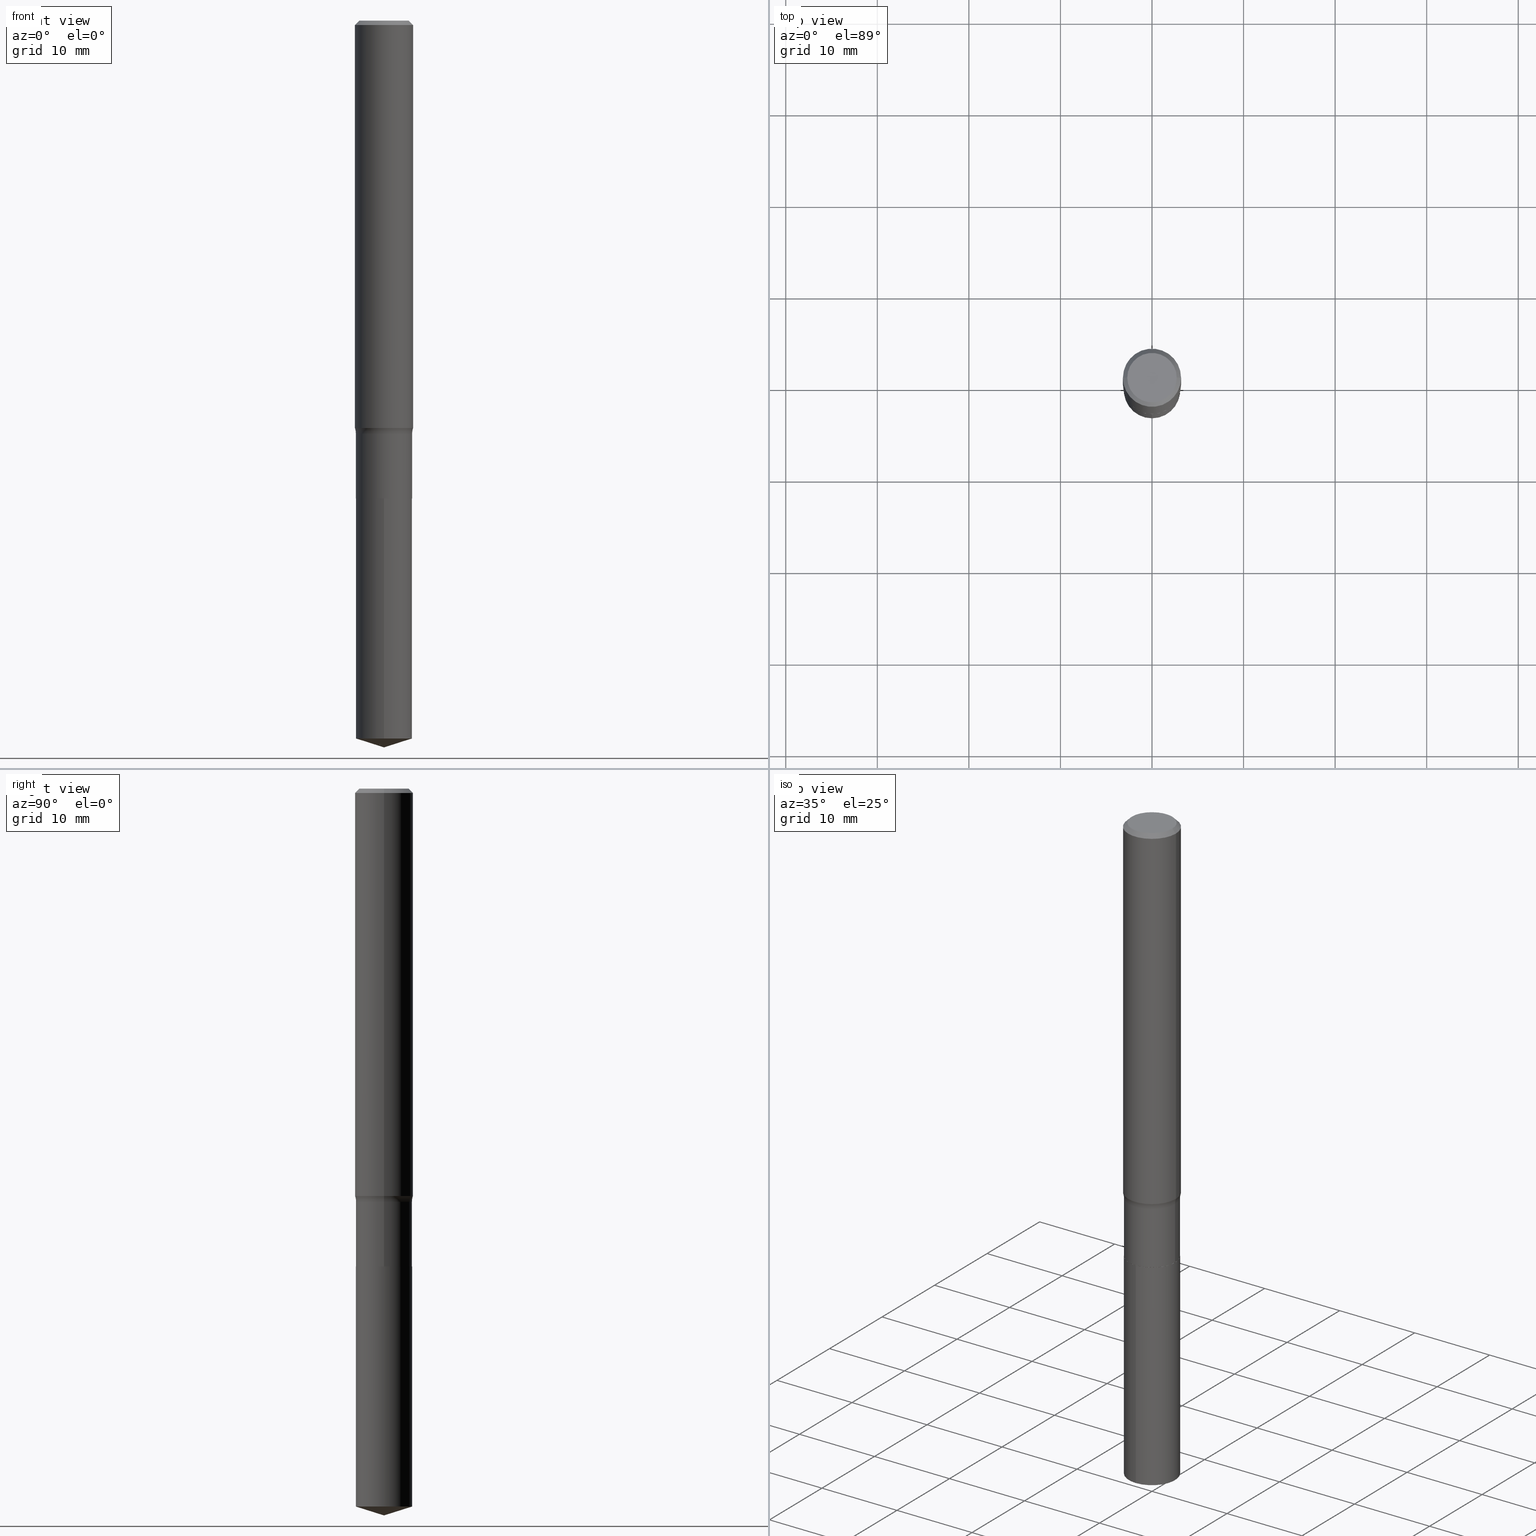
[diagram: canonical four-view strip — front | top / right | iso, engineering-drawing reading convention]
A machine part, canonical four-view strip (front | top / right | iso — engineering-drawing reading convention). The complete STEP part file that produces these views, byte-faithful:
ISO-10303-21;
HEADER;
FILE_DESCRIPTION (( 'STEP AP203' ),
    '1' );
FILE_NAME ('51603.STEP',
    '2024-04-19T13:07:35',
    ( '' ),
    ( '' ),
    'SwSTEP 2.0',
    'SolidWorks 2023',
    '' );
FILE_SCHEMA (( 'CONFIG_CONTROL_DESIGN' ));
ENDSEC;

DATA;
#1 = CARTESIAN_POINT ( 'NONE',  ( -0.1250000000000002498, -5.227298988527986876E-15, -1.751542343988123251 ) ) ;
#2 = COORDINATED_UNIVERSAL_TIME_OFFSET ( 5, 0, .BEHIND. ) ;
#3 = EDGE_LOOP ( 'NONE', ( #31, #164, #324, #198 ) ) ;
#4 = EDGE_CURVE ( 'NONE', #166, #441, #353, .T. ) ;
#5 = PERSON_AND_ORGANIZATION ( #330, #167 ) ;
#6 = DIRECTION ( 'NONE',  ( -1.000000000000000000, 7.105427357600997914E-15, 0.000000000000000000 ) ) ;
#7 = CIRCLE ( 'NONE', #28, 0.1210000000000000103 ) ;
#8 = DIRECTION ( 'NONE',  ( 1.000000000000000000, -6.982962677686267499E-15, 4.883557194083113462E-29 ) ) ;
#9 = DIRECTION ( 'NONE',  ( 1.000000000000000000, -6.982962677686265922E-15, 0.000000000000000000 ) ) ;
#10 = DIRECTION ( 'NONE',  ( 0.000000000000000000, 0.000000000000000000, 1.000000000000000000 ) ) ;
#11 = CARTESIAN_POINT ( 'NONE',  ( 4.585254011597165626E-31, -6.546527510330947764E-17, -0.01875000000000014155 ) ) ;
#12 = ORIENTED_EDGE ( 'NONE', *, *, #425, .F. ) ;
#13 = EDGE_CURVE ( 'NONE', #128, #280, #184, .T. ) ;
#14 = CARTESIAN_POINT ( 'NONE',  ( 0.1250000000000000278, -9.230275248247511818E-16, -0.01875000000000014155 ) ) ;
#15 = AXIS2_PLACEMENT_3D ( 'NONE', #112, #410, #76 ) ;
#16 = CC_DESIGN_APPROVAL ( #284, ( #156 ) ) ;
#17 = DIRECTION ( 'NONE',  ( -2.438088387897960049E-29, 3.491481338843145188E-15, 1.000000000000000000 ) ) ;
#18 = ADVANCED_FACE ( 'NONE', ( #490 ), #461, .F. ) ;
#19 = LOCAL_TIME ( 9, 7, 35.00000000000000000, #176 ) ;
#20 = ORIENTED_EDGE ( 'NONE', *, *, #51, .T. ) ;
#21 = EDGE_CURVE ( 'NONE', #322, #388, #38, .T. ) ;
#22 = DIRECTION ( 'NONE',  ( -2.445399369291198092E-29, 3.491580776427368164E-15, 1.000000000000000000 ) ) ;
#23 = VERTEX_POINT ( 'NONE', #174 ) ;
#24 = EDGE_CURVE ( 'NONE', #280, #200, #334, .T. ) ;
#25 = FACE_OUTER_BOUND ( 'NONE', #430, .T. ) ;
#26 = EDGE_LOOP ( 'NONE', ( #153, #244 ) ) ;
#27 = AXIS2_PLACEMENT_3D ( 'NONE', #88, #43, #453 ) ;
#28 = AXIS2_PLACEMENT_3D ( 'NONE', #104, #403, #216 ) ;
#29 = LINE ( 'NONE', #291, #366 ) ;
#30 = DIRECTION ( 'NONE',  ( -6.982962677686264344E-15, -1.000000000000000000, 4.515451229197129137E-15 ) ) ;
#31 = ORIENTED_EDGE ( 'NONE', *, *, #451, .T. ) ;
#32 = DIRECTION ( 'NONE',  ( -2.445468806185136597E-29, 3.491481338843145583E-15, 1.000000000000000000 ) ) ;
#33 = DIRECTION ( 'NONE',  ( 2.445468806185136597E-29, -3.491481338843145583E-15, -1.000000000000000000 ) ) ;
#34 = AXIS2_PLACEMENT_3D ( 'NONE', #258, #228, #140 ) ;
#35 = VECTOR ( 'NONE', #199, 39.37007874015748143 ) ;
#36 = DIRECTION ( 'NONE',  ( 1.000000000000000000, -6.982962677686265133E-15, 0.000000000000000000 ) ) ;
#37 = CYLINDRICAL_SURFACE ( 'NONE', #212, 0.1210000000000000103 ) ;
#38 = CIRCLE ( 'NONE', #96, 0.1209999999999999687 ) ;
#39 = CIRCLE ( 'NONE', #448, 0.1250000000000000278 ) ;
#40 = CARTESIAN_POINT ( 'NONE',  ( 0.1209999999999999826, -8.449384840000380984E-16, 5.900173898713081917E-30 ) ) ;
#41 = SECURITY_CLASSIFICATION_LEVEL ( 'unclassified' ) ;
#42 = ORIENTED_EDGE ( 'NONE', *, *, #93, .F. ) ;
#43 = DIRECTION ( 'NONE',  ( -2.445468806185136597E-29, 3.491481338843145583E-15, 1.000000000000000000 ) ) ;
#44 = ORIENTED_EDGE ( 'NONE', *, *, #179, .T. ) ;
#45 = CARTESIAN_POINT ( 'NONE',  ( 6.364025535057318316E-46, -9.086141822531067035E-32, -2.602374448188125350E-17 ) ) ;
#46 = EDGE_LOOP ( 'NONE', ( #206, #12 ) ) ;
#47 = DIRECTION ( 'NONE',  ( -6.982962677686265922E-15, -1.000000000000000000, 3.500519750498747030E-15 ) ) ;
#48 = AXIS2_PLACEMENT_3D ( 'NONE', #64, #440, #219 ) ;
#49 = CONICAL_SURFACE ( 'NONE', #427, 0.1204999999999999960, 0.7853981633975678500 ) ;
#50 = ADVANCED_FACE ( 'NONE', ( #295 ), #298, .F. ) ;
#51 = EDGE_CURVE ( 'NONE', #23, #94, #187, .T. ) ;
#52 = ORIENTED_EDGE ( 'NONE', *, *, #404, .F. ) ;
#53 = VERTEX_POINT ( 'NONE', #1 ) ;
#54 = CC_DESIGN_PERSON_AND_ORGANIZATION_ASSIGNMENT ( #414, #233, ( #156 ) ) ;
#55 = DIRECTION ( 'NONE',  ( 1.000000000000000000, -6.982962677686267499E-15, 0.000000000000000000 ) ) ;
#56 = ORIENTED_EDGE ( 'NONE', *, *, #123, .F. ) ;
#57 = CARTESIAN_POINT ( 'NONE',  ( 5.024215662307363891E-29, -7.173248410653242943E-15, -2.054499999999999993 ) ) ;
#58 = ORIENTED_EDGE ( 'NONE', *, *, #466, .F. ) ;
#59 = FACE_OUTER_BOUND ( 'NONE', #3, .T. ) ;
#60 = DIRECTION ( 'NONE',  ( 1.000000000000000000, -6.982962677686265133E-15, 0.000000000000000000 ) ) ;
#61 = ORIENTED_EDGE ( 'NONE', *, *, #123, .T. ) ;
#62 = AXIS2_PLACEMENT_3D ( 'NONE', #367, #252, #36 ) ;
#63 =( GEOMETRIC_REPRESENTATION_CONTEXT ( 3 ) GLOBAL_UNCERTAINTY_ASSIGNED_CONTEXT ( ( #139 ) ) GLOBAL_UNIT_ASSIGNED_CONTEXT ( ( #443, #257, #147 ) ) REPRESENTATION_CONTEXT ( 'NONE', 'WORKASPACE' ) );
#64 = CARTESIAN_POINT ( 'NONE',  ( 0.000000000000000000, 0.000000000000000000, 0.000000000000000000 ) ) ;
#65 = DIRECTION ( 'NONE',  ( -2.445399369291198092E-29, 3.491580776427368164E-15, 1.000000000000000000 ) ) ;
#66 = ORIENTED_EDGE ( 'NONE', *, *, #472, .F. ) ;
#67 = FACE_OUTER_BOUND ( 'NONE', #315, .T. ) ;
#68 = CARTESIAN_POINT ( 'NONE',  ( 4.343641693546039959E-29, -6.201569154053194613E-15, -1.776200000000000001 ) ) ;
#69 = EDGE_CURVE ( 'NONE', #391, #227, #446, .T. ) ;
#70 = CARTESIAN_POINT ( 'NONE',  ( 0.1250000000000001110, -8.728703347107842263E-16, 6.095220969744926047E-30 ) ) ;
#71 = APPROVAL_DATE_TIME ( #152, #460 ) ;
#72 = EDGE_LOOP ( 'NONE', ( #169, #215, #426, #52 ) ) ;
#73 = CYLINDRICAL_SURFACE ( 'NONE', #327, 0.1250000000000001110 ) ;
#74 = CLOSED_SHELL ( 'NONE', ( #421, #202, #196, #135, #165 ) ) ;
#75 = VECTOR ( 'NONE', #373, 39.37007874015748143 ) ;
#76 = DIRECTION ( 'NONE',  ( 1.000000000000000000, -6.982962677686270655E-15, 0.000000000000000000 ) ) ;
#77 = DATE_AND_TIME ( #411, #235 ) ;
#78 = ORIENTED_EDGE ( 'NONE', *, *, #93, .T. ) ;
#79 = DIRECTION ( 'NONE',  ( -2.445468806185136597E-29, 3.491481338843145583E-15, 1.000000000000000000 ) ) ;
#80 = PERSON_AND_ORGANIZATION ( #330, #167 ) ;
#81 = ORIENTED_EDGE ( 'NONE', *, *, #238, .F. ) ;
#82 = FACE_OUTER_BOUND ( 'NONE', #46, .T. ) ;
#83 = CC_DESIGN_DATE_AND_TIME_ASSIGNMENT ( #168, #218, ( #277 ) ) ;
#84 = AXIS2_PLACEMENT_3D ( 'NONE', #317, #392, #397 ) ;
#85 = DIRECTION ( 'NONE',  ( 1.000000000000000000, -6.982962677686270655E-15, 0.000000000000000000 ) ) ;
#86 = CALENDAR_DATE ( 2024, 19, 4 ) ;
#87 = DIRECTION ( 'NONE',  ( 1.000000000000000000, -6.982962677686266711E-15, 4.877714189860772023E-29 ) ) ;
#88 = CARTESIAN_POINT ( 'NONE',  ( 0.000000000000000000, 0.000000000000000000, 0.000000000000000000 ) ) ;
#89 = VECTOR ( 'NONE', #115, 39.37007874015748143 ) ;
#90 = CIRCLE ( 'NONE', #355, 0.1062499999999999972 ) ;
#91 = ORIENTED_EDGE ( 'NONE', *, *, #425, .T. ) ;
#92 = ADVANCED_FACE ( 'NONE', ( #59 ), #286, .T. ) ;
#93 = EDGE_CURVE ( 'NONE', #388, #322, #309, .T. ) ;
#94 = VERTEX_POINT ( 'NONE', #102 ) ;
#95 = CARTESIAN_POINT ( 'NONE',  ( 7.548720880538574593E-29, -1.077777779781897648E-14, -3.086848846545643177 ) ) ;
#96 = AXIS2_PLACEMENT_3D ( 'NONE', #222, #331, #401 ) ;
#97 = ORIENTED_EDGE ( 'NONE', *, *, #472, .T. ) ;
#98 = DIRECTION ( 'NONE',  ( -2.445468806185136877E-29, 3.491481338843145188E-15, 1.000000000000000000 ) ) ;
#99 = VERTEX_POINT ( 'NONE', #213 ) ;
#100 = MANIFOLD_SOLID_BREP ( 'Body-Move/Copy2[2]', #119 ) ;
#101 = SHAPE_DEFINITION_REPRESENTATION ( #346, #236 ) ;
#102 = CARTESIAN_POINT ( 'NONE',  ( 8.597567102697963387E-16, 0.1209999999999891718, -3.086848846545643621 ) ) ;
#103 = CARTESIAN_POINT ( 'NONE',  ( 0.1204999999999999960, -8.014695413314437640E-15, -2.054499999999999993 ) ) ;
#104 = CARTESIAN_POINT ( 'NONE',  ( 7.548720880538574593E-29, -1.077777779781897648E-14, -3.086848846545643177 ) ) ;
#105 = CC_DESIGN_PERSON_AND_ORGANIZATION_ASSIGNMENT ( #5, #296, ( #270 ) ) ;
#106 = FACE_OUTER_BOUND ( 'NONE', #72, .T. ) ;
#107 = CIRCLE ( 'NONE', #319, 0.1062499999999999972 ) ;
#108 = ADVANCED_FACE ( 'NONE', ( #106 ), #271, .T. ) ;
#109 = ORIENTED_EDGE ( 'NONE', *, *, #387, .F. ) ;
#110 = CARTESIAN_POINT ( 'NONE',  ( 4.585254011597165626E-31, -6.546527510330947764E-17, -0.01875000000000014155 ) ) ;
#111 = ORIENTED_EDGE ( 'NONE', *, *, #399, .F. ) ;
#112 = CARTESIAN_POINT ( 'NONE',  ( 4.343641693546039959E-29, -6.201569154053194613E-15, -1.776200000000000001 ) ) ;
#113 = COORDINATED_UNIVERSAL_TIME_OFFSET ( 5, 0, .BEHIND. ) ;
#114 = CARTESIAN_POINT ( 'NONE',  ( 4.283342164935351862E-29, -6.115477408228114475E-15, -1.751542343988123251 ) ) ;
#115 = DIRECTION ( 'NONE',  ( -0.7071067811866320607, 7.493145998870660238E-15, 0.7071067811864629737 ) ) ;
#116 = DATE_AND_TIME ( #300, #161 ) ;
#117 = VERTEX_POINT ( 'NONE', #396 ) ;
#118 = CARTESIAN_POINT ( 'NONE',  ( 8.597567102697967331E-16, 0.1209999999999928355, -2.054500000000000881 ) ) ;
#119 = CLOSED_SHELL ( 'NONE', ( #108, #456, #354, #18, #92, #347, #125, #210, #370, #50, #211, #464 ) ) ;
#120 = CIRCLE ( 'NONE', #293, 0.1210000000000000103 ) ;
#121 = DIRECTION ( 'NONE',  ( -2.445399369291198092E-29, 3.491580776427368164E-15, 1.000000000000000000 ) ) ;
#122 = DIRECTION ( 'NONE',  ( -6.982962677686265922E-15, -1.000000000000000000, 3.500519750498747030E-15 ) ) ;
#123 = EDGE_CURVE ( 'NONE', #117, #185, #29, .T. ) ;
#124 = ORIENTED_EDGE ( 'NONE', *, *, #310, .F. ) ;
#125 = ADVANCED_FACE ( 'NONE', ( #361 ), #342, .F. ) ;
#126 = AXIS2_PLACEMENT_3D ( 'NONE', #326, #402, #279 ) ;
#127 = ORIENTED_EDGE ( 'NONE', *, *, #439, .F. ) ;
#128 = VERTEX_POINT ( 'NONE', #177 ) ;
#129 = ORIENTED_EDGE ( 'NONE', *, *, #248, .T. ) ;
#130 = AXIS2_PLACEMENT_3D ( 'NONE', #376, #378, #47 ) ;
#131 = DIRECTION ( 'NONE',  ( 0.7071067811866320607, -2.468850131083142557E-15, 0.7071067811864629737 ) ) ;
#132 = CIRCLE ( 'NONE', #243, 0.1250000000000000278 ) ;
#133 = ORIENTED_EDGE ( 'NONE', *, *, #13, .F. ) ;
#134 = CARTESIAN_POINT ( 'NONE',  ( 5.024215662307363891E-29, -7.173248410653242943E-15, -2.054499999999999993 ) ) ;
#135 = ADVANCED_FACE ( 'NONE', ( #337 ), #37, .T. ) ;
#136 = ORIENTED_EDGE ( 'NONE', *, *, #278, .T. ) ;
#137 = DIRECTION ( 'NONE',  ( -2.445399369291198092E-29, 3.491580776427368164E-15, 1.000000000000000000 ) ) ;
#138 = CARTESIAN_POINT ( 'NONE',  ( 5.024215662307363891E-29, -7.173248410653242943E-15, -2.054499999999999993 ) ) ;
#139 = UNCERTAINTY_MEASURE_WITH_UNIT (LENGTH_MEASURE( 1.000000000000000082E-05 ), #443, 'distance_accuracy_value', 'NONE');
#140 = DIRECTION ( 'NONE',  ( -1.000000000000000000, 6.982962677686265922E-15, -4.876176775795935793E-29 ) ) ;
#141 = DIRECTION ( 'NONE',  ( -2.445399369291198092E-29, 3.491580776427368164E-15, 1.000000000000000000 ) ) ;
#142 = AXIS2_PLACEMENT_3D ( 'NONE', #68, #325, #479 ) ;
#143 = DIRECTION ( 'NONE',  ( -2.445468806185136597E-29, 3.491481338843145583E-15, 1.000000000000000000 ) ) ;
#144 = APPROVAL_PERSON_ORGANIZATION ( #458, #284, #379 ) ;
#145 = APPROVAL ( #360, 'UNSPECIFIED' ) ;
#146 = CARTESIAN_POINT ( 'NONE',  ( 5.024215662307363891E-29, -7.173248410653242943E-15, -2.054499999999999993 ) ) ;
#147 =( NAMED_UNIT ( * ) SI_UNIT ( $, .STERADIAN. ) SOLID_ANGLE_UNIT ( ) );
#148 = EDGE_LOOP ( 'NONE', ( #375, #242, #61, #171 ) ) ;
#149 = DIRECTION ( 'NONE',  ( 1.000000000000000000, -6.982962677686265922E-15, 0.000000000000000000 ) ) ;
#150 = DIRECTION ( 'NONE',  ( -2.445399369291197811E-29, 3.491580776427368164E-15, 1.000000000000000000 ) ) ;
#151 = CARTESIAN_POINT ( 'NONE',  ( 0.1250000000000002498, -6.988347742938897814E-15, -1.751542343988123251 ) ) ;
#152 = DATE_AND_TIME ( #86, #418 ) ;
#153 = ORIENTED_EDGE ( 'NONE', *, *, #24, .T. ) ;
#154 = CC_DESIGN_DATE_AND_TIME_ASSIGNMENT ( #116, #368, ( #452 ) ) ;
#155 = CIRCLE ( 'NONE', #314, 0.1204999999999999960 ) ;
#156 = PRODUCT_DEFINITION_FORMATION_WITH_SPECIFIED_SOURCE ( 'ANY', '', #270, .NOT_KNOWN. ) ;
#157 = DIRECTION ( 'NONE',  ( -2.445468806185136877E-29, 3.491481338843145188E-15, 1.000000000000000000 ) ) ;
#158 = APPROVAL_STATUS ( 'not_yet_approved' ) ;
#159 = DIRECTION ( 'NONE',  ( -2.445399369291198092E-29, 3.491580776427368164E-15, 1.000000000000000000 ) ) ;
#160 = LINE ( 'NONE', #307, #89 ) ;
#161 = LOCAL_TIME ( 9, 7, 35.00000000000000000, #239 ) ;
#162 = FACE_OUTER_BOUND ( 'NONE', #26, .T. ) ;
#163 = CARTESIAN_POINT ( 'NONE',  ( -8.863355003299231845E-28, 1.265528244637469383E-13, 36.24507874015748143 ) ) ;
#164 = ORIENTED_EDGE ( 'NONE', *, *, #283, .T. ) ;
#165 = ADVANCED_FACE ( 'NONE', ( #162 ), #265, .F. ) ;
#166 = VERTEX_POINT ( 'NONE', #413 ) ;
#167 = ORGANIZATION ( 'UNSPECIFIED', 'UNSPECIFIED', '' ) ;
#168 = DATE_AND_TIME ( #320, #19 ) ;
#169 = ORIENTED_EDGE ( 'NONE', *, *, #263, .T. ) ;
#170 = DIRECTION ( 'NONE',  ( -6.982962677686264344E-15, -1.000000000000000000, 4.515451229197129137E-15 ) ) ;
#171 = ORIENTED_EDGE ( 'NONE', *, *, #238, .T. ) ;
#172 = ORIENTED_EDGE ( 'NONE', *, *, #69, .F. ) ;
#173 = DIRECTION ( 'NONE',  ( 7.105427357601001859E-15, 1.000000000000000000, -3.491481338843145583E-15 ) ) ;
#174 = CARTESIAN_POINT ( 'NONE',  ( 7.641873029034993476E-29, -1.091118992633552625E-14, -3.125000000000000000 ) ) ;
#175 = EDGE_LOOP ( 'NONE', ( #312, #348, #465, #81 ) ) ;
#176 = COORDINATED_UNIVERSAL_TIME_OFFSET ( 5, 0, .BEHIND. ) ;
#177 = CARTESIAN_POINT ( 'NONE',  ( -8.449384839999622692E-16, -0.1210000000000107379, -3.086848846545642289 ) ) ;
#178 = CARTESIAN_POINT ( 'NONE',  ( 0.1210000000000000242, -8.016441153983859932E-15, -2.054000000000000270 ) ) ;
#179 = EDGE_CURVE ( 'NONE', #391, #322, #468, .T. ) ;
#180 = ORIENTED_EDGE ( 'NONE', *, *, #259, .F. ) ;
#181 = DIRECTION ( 'NONE',  ( 1.000000000000000000, -6.982962677686267499E-15, 4.876176775795936353E-29 ) ) ;
#182 = ORIENTED_EDGE ( 'NONE', *, *, #406, .T. ) ;
#183 = CONICAL_SURFACE ( 'NONE', #350, 0.1250000000000000278, 0.7853981633974458365 ) ;
#184 = LINE ( 'NONE', #371, #383 ) ;
#185 = VERTEX_POINT ( 'NONE', #204 ) ;
#186 = APPLICATION_CONTEXT ( 'configuration controlled 3d designs of mechanical parts and assemblies' ) ;
#187 = LINE ( 'NONE', #407, #349 ) ;
#188 = CARTESIAN_POINT ( 'NONE',  ( -0.1209999999999999687, -5.826779201748786827E-15, -1.776200000000000001 ) ) ;
#189 = CYLINDRICAL_SURFACE ( 'NONE', #27, 0.1250000000000001110 ) ;
#190 = CC_DESIGN_PERSON_AND_ORGANIZATION_ASSIGNMENT ( #445, #447, ( #452 ) ) ;
#191 = CARTESIAN_POINT ( 'NONE',  ( 5.022992927904271090E-29, -7.171502669983822228E-15, -2.054000000000000270 ) ) ;
#192 = AXIS2_PLACEMENT_3D ( 'NONE', #449, #232, #415 ) ;
#193 = CIRCLE ( 'NONE', #267, 0.1210000000000000103 ) ;
#194 = CARTESIAN_POINT ( 'NONE',  ( 5.024215662307363891E-29, -7.173248410653242943E-15, -2.054499999999999993 ) ) ;
#195 = PERSON_AND_ORGANIZATION ( #330, #167 ) ;
#196 = ADVANCED_FACE ( 'NONE', ( #237 ), #475, .T. ) ;
#197 = PLANE ( 'NONE',  #275 ) ;
#198 = ORIENTED_EDGE ( 'NONE', *, *, #248, .F. ) ;
#199 = DIRECTION ( 'NONE',  ( -2.445468806185136877E-29, 3.491481338843145188E-15, 1.000000000000000000 ) ) ;
#200 = VERTEX_POINT ( 'NONE', #118 ) ;
#201 = AXIS2_PLACEMENT_3D ( 'NONE', #191, #385, #256 ) ;
#202 = ADVANCED_FACE ( 'NONE', ( #269 ), #341, .T. ) ;
#203 = AXIS2_PLACEMENT_3D ( 'NONE', #436, #173, #6 ) ;
#204 = CARTESIAN_POINT ( 'NONE',  ( -0.1250000000000000278, -2.202292921965584605E-15, -0.01875000000000014155 ) ) ;
#205 = EDGE_LOOP ( 'NONE', ( #249, #273, #481, #133 ) ) ;
#206 = ORIENTED_EDGE ( 'NONE', *, *, #263, .F. ) ;
#207 = CIRCLE ( 'NONE', #126, 0.1250000000000002220 ) ;
#208 = ORIENTED_EDGE ( 'NONE', *, *, #297, .F. ) ;
#209 = CARTESIAN_POINT ( 'NONE',  ( 4.585254011597165626E-31, -6.546527510330947764E-17, -0.01875000000000014155 ) ) ;
#210 = ADVANCED_FACE ( 'NONE', ( #268 ), #189, .T. ) ;
#211 = ADVANCED_FACE ( 'NONE', ( #82 ), #197, .F. ) ;
#212 = AXIS2_PLACEMENT_3D ( 'NONE', #194, #121, #423 ) ;
#213 = CARTESIAN_POINT ( 'NONE',  ( -0.1204999999999999960, -6.314395186888211441E-15, -2.054499999999999993 ) ) ;
#214 = CARTESIAN_POINT ( 'NONE',  ( 0.1204999999999999960, -8.014695413314437640E-15, -2.054499999999999993 ) ) ;
#215 = ORIENTED_EDGE ( 'NONE', *, *, #259, .T. ) ;
#216 = DIRECTION ( 'NONE',  ( -6.982962677686264344E-15, -1.000000000000000000, 4.515451229197129137E-15 ) ) ;
#217 = LOCAL_TIME ( 9, 7, 35.00000000000000000, #290 ) ;
#218 = DATE_TIME_ROLE ( 'classification_date' ) ;
#219 = DIRECTION ( 'NONE',  ( 1.000000000000000000, -6.982962677686265922E-15, 4.876176775795936353E-29 ) ) ;
#220 = CARTESIAN_POINT ( 'NONE',  ( 5.022992927904271090E-29, -7.171502669983822228E-15, -2.054000000000000270 ) ) ;
#221 = FACE_OUTER_BOUND ( 'NONE', #358, .T. ) ;
#222 = CARTESIAN_POINT ( 'NONE',  ( 4.343641693546039959E-29, -6.201569154053194613E-15, -1.776200000000000001 ) ) ;
#223 = DIRECTION ( 'NONE',  ( -2.445468806185136597E-29, 3.491481338843145583E-15, 1.000000000000000000 ) ) ;
#224 = CARTESIAN_POINT ( 'NONE',  ( 0.1209999999999999687, -7.046507638053233895E-15, -1.776200000000000001 ) ) ;
#225 = DIRECTION ( 'NONE',  ( -2.445468806185136877E-29, 3.491481338843145188E-15, 1.000000000000000000 ) ) ;
#226 = CARTESIAN_POINT ( 'NONE',  ( 0.000000000000000000, 0.000000000000000000, 0.000000000000000000 ) ) ;
#227 = VERTEX_POINT ( 'NONE', #412 ) ;
#228 = DIRECTION ( 'NONE',  ( 2.438088387897960049E-29, -3.491481338843145188E-15, -1.000000000000000000 ) ) ;
#229 = EDGE_LOOP ( 'NONE', ( #109, #111, #44, #469 ) ) ;
#230 = DIRECTION ( 'NONE',  ( 1.000000000000000000, -6.982962677686265922E-15, 0.000000000000000000 ) ) ;
#231 = APPROVAL_STATUS ( 'not_yet_approved' ) ;
#232 = DIRECTION ( 'NONE',  ( 2.445399369291197811E-29, -3.491580776427368164E-15, -1.000000000000000000 ) ) ;
#233 = PERSON_AND_ORGANIZATION_ROLE ( 'design_supplier' ) ;
#234 = AXIS2_PLACEMENT_3D ( 'NONE', #146, #137, #405 ) ;
#235 = LOCAL_TIME ( 9, 7, 35.00000000000000000, #113 ) ;
#236 = ADVANCED_BREP_SHAPE_REPRESENTATION ( '51603', ( #424, #100, #470 ), #63 ) ;
#237 = FACE_OUTER_BOUND ( 'NONE', #431, .T. ) ;
#238 = EDGE_CURVE ( 'NONE', #185, #227, #132, .T. ) ;
#239 = COORDINATED_UNIVERSAL_TIME_OFFSET ( 5, 0, .BEHIND. ) ;
#240 = LINE ( 'NONE', #380, #35 ) ;
#241 = DIRECTION ( 'NONE',  ( -2.445468806185136597E-29, 3.491481338843145583E-15, 1.000000000000000000 ) ) ;
#242 = ORIENTED_EDGE ( 'NONE', *, *, #278, .F. ) ;
#243 = AXIS2_PLACEMENT_3D ( 'NONE', #11, #241, #9 ) ;
#244 = ORIENTED_EDGE ( 'NONE', *, *, #439, .T. ) ;
#245 = ORIENTED_EDGE ( 'NONE', *, *, #316, .F. ) ;
#246 = APPROVAL_DATE_TIME ( #276, #145 ) ;
#247 = VECTOR ( 'NONE', #463, 39.37007874015748854 ) ;
#248 = EDGE_CURVE ( 'NONE', #441, #322, #262, .T. ) ;
#249 = ORIENTED_EDGE ( 'NONE', *, *, #329, .T. ) ;
#250 = FACE_OUTER_BOUND ( 'NONE', #205, .T. ) ;
#251 = ORIENTED_EDGE ( 'NONE', *, *, #466, .T. ) ;
#252 = DIRECTION ( 'NONE',  ( -2.445468806185136597E-29, 3.491481338843145583E-15, 1.000000000000000000 ) ) ;
#253 = DIRECTION ( 'NONE',  ( -0.7071067811865457964, 2.468850131082238917E-15, -0.7071067811865492381 ) ) ;
#254 = VECTOR ( 'NONE', #131, 39.37007874015748143 ) ;
#255 = CC_DESIGN_APPROVAL ( #145, ( #277 ) ) ;
#256 = DIRECTION ( 'NONE',  ( 1.000000000000000000, -6.982962677686267499E-15, 0.000000000000000000 ) ) ;
#257 =( NAMED_UNIT ( * ) PLANE_ANGLE_UNIT ( ) SI_UNIT ( $, .RADIAN. ) );
#258 = CARTESIAN_POINT ( 'NONE',  ( 3.182012767528659158E-46, -4.543070911265533518E-32, -1.301187224094062675E-17 ) ) ;
#259 = EDGE_CURVE ( 'NONE', #99, #166, #160, .T. ) ;
#260 = APPROVAL_DATE_TIME ( #77, #284 ) ;
#261 = AXIS2_PLACEMENT_3D ( 'NONE', #114, #79, #230 ) ;
#262 = LINE ( 'NONE', #40, #301 ) ;
#263 = EDGE_CURVE ( 'NONE', #417, #99, #155, .T. ) ;
#264 = DIRECTION ( 'NONE',  ( 1.000000000000000000, -6.982962677686265922E-15, 4.876176775795935793E-29 ) ) ;
#265 = PLANE ( 'NONE',  #192 ) ;
#266 = AXIS2_PLACEMENT_3D ( 'NONE', #163, #159, #122 ) ;
#267 = AXIS2_PLACEMENT_3D ( 'NONE', #57, #141, #390 ) ;
#268 = FACE_OUTER_BOUND ( 'NONE', #175, .T. ) ;
#269 = FACE_OUTER_BOUND ( 'NONE', #429, .T. ) ;
#270 = PRODUCT ( '51603', '51603', '', ( #306 ) ) ;
#271 = CONICAL_SURFACE ( 'NONE', #62, 0.1204999999999999960, 0.7853981633975678500 ) ;
#272 = CONICAL_SURFACE ( 'NONE', #409, 0.1250000000000000278, 0.7853981633974458365 ) ;
#273 = ORIENTED_EDGE ( 'NONE', *, *, #316, .T. ) ;
#274 = EDGE_LOOP ( 'NONE', ( #245, #251, #294, #127 ) ) ;
#275 = AXIS2_PLACEMENT_3D ( 'NONE', #339, #17, #264 ) ;
#276 = DATE_AND_TIME ( #285, #217 ) ;
#277 = SECURITY_CLASSIFICATION ( '', '', #41 ) ;
#278 = EDGE_CURVE ( 'NONE', #117, #377, #107, .T. ) ;
#279 = DIRECTION ( 'NONE',  ( 1.000000000000000000, -6.982962677686265922E-15, 0.000000000000000000 ) ) ;
#280 = VERTEX_POINT ( 'NONE', #382 ) ;
#281 = CARTESIAN_POINT ( 'NONE',  ( 0.1062499999999999972, -8.259777185439882643E-16, -2.602374448187577153E-17 ) ) ;
#282 = DIRECTION ( 'NONE',  ( -2.445468806185136597E-29, 3.491481338843145583E-15, 1.000000000000000000 ) ) ;
#283 = EDGE_CURVE ( 'NONE', #166, #388, #240, .T. ) ;
#284 = APPROVAL ( #231, 'UNSPECIFIED' ) ;
#285 = CALENDAR_DATE ( 2024, 19, 4 ) ;
#286 = CYLINDRICAL_SURFACE ( 'NONE', #48, 0.1209999999999999826 ) ;
#287 =( LENGTH_UNIT ( ) NAMED_UNIT ( * ) SI_UNIT ( $, .METRE. ) );
#288 = ORIENTED_EDGE ( 'NONE', *, *, #404, .T. ) ;
#289 = DIRECTION ( 'NONE',  ( 1.000000000000000000, -6.982962677686265922E-15, 4.876176775795936353E-29 ) ) ;
#290 = COORDINATED_UNIVERSAL_TIME_OFFSET ( 5, 0, .BEHIND. ) ;
#291 = CARTESIAN_POINT ( 'NONE',  ( -0.1250000000000000278, 8.074050596074739968E-16, -0.01875000000000014155 ) ) ;
#292 = LENGTH_MEASURE_WITH_UNIT ( LENGTH_MEASURE( 0.02539999999999999897 ), #287 );
#293 = AXIS2_PLACEMENT_3D ( 'NONE', #95, #22, #170 ) ;
#294 = ORIENTED_EDGE ( 'NONE', *, *, #13, .T. ) ;
#295 = FACE_OUTER_BOUND ( 'NONE', #386, .T. ) ;
#296 = PERSON_AND_ORGANIZATION_ROLE ( 'design_owner' ) ;
#297 = EDGE_CURVE ( 'NONE', #53, #391, #400, .T. ) ;
#298 = PLANE ( 'NONE',  #34 ) ;
#299 = PERSON_AND_ORGANIZATION ( #330, #167 ) ;
#300 = CALENDAR_DATE ( 2024, 19, 4 ) ;
#301 = VECTOR ( 'NONE', #157, 39.37007874015748143 ) ;
#302 = AXIS2_PLACEMENT_3D ( 'NONE', #482, #359, #289 ) ;
#303 = DIRECTION ( 'NONE',  ( -6.982962677686266711E-15, -1.000000000000000000, 3.491481338843145583E-15 ) ) ;
#304 = EDGE_CURVE ( 'NONE', #377, #227, #340, .T. ) ;
#305 = CARTESIAN_POINT ( 'NONE',  ( 5.024215662307363891E-29, -7.173248410653242943E-15, -2.054499999999999993 ) ) ;
#306 = MECHANICAL_CONTEXT ( 'NONE', #186, 'mechanical' ) ;
#307 = CARTESIAN_POINT ( 'NONE',  ( -0.1204999999999999960, -6.317044414062322642E-15, -2.054499999999999993 ) ) ;
#308 = ORIENTED_EDGE ( 'NONE', *, *, #304, .T. ) ;
#309 = CIRCLE ( 'NONE', #15, 0.1209999999999999687 ) ;
#310 = EDGE_CURVE ( 'NONE', #23, #128, #311, .T. ) ;
#311 = LINE ( 'NONE', #333, #247 ) ;
#312 = ORIENTED_EDGE ( 'NONE', *, *, #406, .F. ) ;
#313 = ORIENTED_EDGE ( 'NONE', *, *, #387, .T. ) ;
#314 = AXIS2_PLACEMENT_3D ( 'NONE', #305, #457, #459 ) ;
#315 = EDGE_LOOP ( 'NONE', ( #398, #478, #129, #42 ) ) ;
#316 = EDGE_CURVE ( 'NONE', #94, #200, #434, .T. ) ;
#317 = CARTESIAN_POINT ( 'NONE',  ( 5.024215662307363891E-29, -7.173248410653242943E-15, -2.054499999999999993 ) ) ;
#318 = DESIGN_CONTEXT ( 'detailed design', #352, 'design' ) ;
#319 = AXIS2_PLACEMENT_3D ( 'NONE', #45, #420, #87 ) ;
#320 = CALENDAR_DATE ( 2024, 19, 4 ) ;
#321 = DIRECTION ( 'NONE',  ( -2.445468806185136597E-29, 3.491481338843145583E-15, 1.000000000000000000 ) ) ;
#322 = VERTEX_POINT ( 'NONE', #224 ) ;
#323 = CARTESIAN_POINT ( 'NONE',  ( 4.343641693546039959E-29, -6.201569154053194613E-15, -1.776200000000000001 ) ) ;
#324 = ORIENTED_EDGE ( 'NONE', *, *, #21, .F. ) ;
#325 = DIRECTION ( 'NONE',  ( -2.445468806185136597E-29, 3.491481338843145583E-15, 1.000000000000000000 ) ) ;
#326 = CARTESIAN_POINT ( 'NONE',  ( 4.283342164935351862E-29, -6.115477408228114475E-15, -1.751542343988123251 ) ) ;
#327 = AXIS2_PLACEMENT_3D ( 'NONE', #364, #32, #181 ) ;
#328 = DIRECTION ( 'NONE',  ( -1.000000000000000000, 6.982962677686265922E-15, 0.000000000000000000 ) ) ;
#329 = EDGE_CURVE ( 'NONE', #128, #94, #7, .T. ) ;
#330 = PERSON ( 'UNSPECIFIED', 'UNSPECIFIED', 'UNSPECIFIED', ('UNSPECIFIED'), ('UNSPECIFIED'), ('UNSPECIFIED') ) ;
#331 = DIRECTION ( 'NONE',  ( -2.445468806185136597E-29, 3.491481338843145583E-15, 1.000000000000000000 ) ) ;
#332 = APPLICATION_PROTOCOL_DEFINITION ( 'international standard', 'config_control_design', 1994, #186 ) ;
#333 = CARTESIAN_POINT ( 'NONE',  ( 7.641873029034993476E-29, -1.091118992633552625E-14, -3.125000000000000000 ) ) ;
#334 = CIRCLE ( 'NONE', #234, 0.1210000000000000103 ) ;
#335 = VECTOR ( 'NONE', #98, 39.37007874015748143 ) ;
#336 = CC_DESIGN_PERSON_AND_ORGANIZATION_ASSIGNMENT ( #195, #338, ( #277 ) ) ;
#337 = FACE_OUTER_BOUND ( 'NONE', #274, .T. ) ;
#338 = PERSON_AND_ORGANIZATION_ROLE ( 'classification_officer' ) ;
#339 = CARTESIAN_POINT ( 'NONE',  ( 5.024215662307363891E-29, -7.173248410653242943E-15, -2.054499999999999993 ) ) ;
#340 = LINE ( 'NONE', #14, #75 ) ;
#341 = CONICAL_SURFACE ( 'NONE', #130, 124.8659371009135413, 1.265363707695888129 ) ;
#342 = TOROIDAL_SURFACE ( 'NONE', #408, 0.1989999999999999547, 0.07799999999999999989 ) ;
#343 = CIRCLE ( 'NONE', #203, 0.07799999999999999989 ) ;
#344 = CARTESIAN_POINT ( 'NONE',  ( 0.1989999999999999547, -7.591178726912761152E-15, -1.776200000000000001 ) ) ;
#345 = CC_DESIGN_SECURITY_CLASSIFICATION ( #277, ( #156 ) ) ;
#346 = PRODUCT_DEFINITION_SHAPE ( 'NONE', 'NONE',  #452 ) ;
#347 = ADVANCED_FACE ( 'NONE', ( #67 ), #394, .T. ) ;
#348 = ORIENTED_EDGE ( 'NONE', *, *, #297, .T. ) ;
#349 = VECTOR ( 'NONE', #356, 39.37007874015747433 ) ;
#350 = AXIS2_PLACEMENT_3D ( 'NONE', #209, #357, #480 ) ;
#351 = ORIENTED_EDGE ( 'NONE', *, *, #329, .F. ) ;
#352 = APPLICATION_CONTEXT ( 'configuration controlled 3d designs of mechanical parts and assemblies' ) ;
#353 = CIRCLE ( 'NONE', #201, 0.1210000000000000242 ) ;
#354 = ADVANCED_FACE ( 'NONE', ( #221 ), #73, .T. ) ;
#355 = AXIS2_PLACEMENT_3D ( 'NONE', #477, #282, #438 ) ;
#356 = DIRECTION ( 'NONE',  ( 6.776566513254251038E-15, 0.9537169507482278208, 0.3007057995042706211 ) ) ;
#357 = DIRECTION ( 'NONE',  ( 2.445468806185136597E-29, -3.491481338843145583E-15, -1.000000000000000000 ) ) ;
#358 = EDGE_LOOP ( 'NONE', ( #365, #182, #455, #172 ) ) ;
#359 = DIRECTION ( 'NONE',  ( -2.445468806185136597E-29, 3.491481338843145583E-15, 1.000000000000000000 ) ) ;
#360 = APPROVAL_STATUS ( 'not_yet_approved' ) ;
#361 = FACE_OUTER_BOUND ( 'NONE', #229, .T. ) ;
#362 = EDGE_CURVE ( 'NONE', #227, #185, #39, .T. ) ;
#363 = CYLINDRICAL_SURFACE ( 'NONE', #462, 0.1210000000000000103 ) ;
#364 = CARTESIAN_POINT ( 'NONE',  ( 0.000000000000000000, 0.000000000000000000, 0.000000000000000000 ) ) ;
#365 = ORIENTED_EDGE ( 'NONE', *, *, #399, .T. ) ;
#366 = VECTOR ( 'NONE', #253, 39.37007874015748143 ) ;
#367 = CARTESIAN_POINT ( 'NONE',  ( 5.024215662307363891E-29, -7.173248410653242943E-15, -2.054499999999999993 ) ) ;
#368 = DATE_TIME_ROLE ( 'creation_date' ) ;
#369 = CC_DESIGN_APPROVAL ( #460, ( #452 ) ) ;
#370 = ADVANCED_FACE ( 'NONE', ( #444 ), #272, .T. ) ;
#371 = CARTESIAN_POINT ( 'NONE',  ( -8.449384839999879072E-16, -0.1210000000000071713, -2.054499999999999549 ) ) ;
#372 = ORIENTED_EDGE ( 'NONE', *, *, #4, .F. ) ;
#373 = DIRECTION ( 'NONE',  ( 0.7071067811865457964, -7.319954787623249734E-15, -0.7071067811865492381 ) ) ;
#374 = PERSON_AND_ORGANIZATION_ROLE ( 'creator' ) ;
#375 = ORIENTED_EDGE ( 'NONE', *, *, #304, .F. ) ;
#376 = CARTESIAN_POINT ( 'NONE',  ( -8.863355003299231845E-28, 1.265528244637469383E-13, 36.24507874015748143 ) ) ;
#377 = VERTEX_POINT ( 'NONE', #281 ) ;
#378 = DIRECTION ( 'NONE',  ( -2.445399369291198092E-29, 3.491580776427368164E-15, 1.000000000000000000 ) ) ;
#379 = APPROVAL_ROLE ( '' ) ;
#380 = CARTESIAN_POINT ( 'NONE',  ( -0.1209999999999999826, 8.597567102697211011E-16, -5.951911459208435906E-30 ) ) ;
#381 = CARTESIAN_POINT ( 'NONE',  ( 8.597567102697713909E-16, 0.1209999999999928355, -2.054500000000000881 ) ) ;
#382 = CARTESIAN_POINT ( 'NONE',  ( -8.449384839999879072E-16, -0.1210000000000071713, -2.054499999999999549 ) ) ;
#383 = VECTOR ( 'NONE', #150, 39.37007874015748143 ) ;
#384 = AXIS2_PLACEMENT_3D ( 'NONE', #220, #223, #55 ) ;
#385 = DIRECTION ( 'NONE',  ( -2.445468806185136597E-29, 3.491481338843145583E-15, 1.000000000000000000 ) ) ;
#386 = EDGE_LOOP ( 'NONE', ( #136, #97 ) ) ;
#387 = EDGE_CURVE ( 'NONE', #53, #388, #343, .T. ) ;
#388 = VERTEX_POINT ( 'NONE', #188 ) ;
#389 = VECTOR ( 'NONE', #437, 39.37007874015748143 ) ;
#390 = DIRECTION ( 'NONE',  ( -6.982962677686264344E-15, -1.000000000000000000, 4.515451229197129137E-15 ) ) ;
#391 = VERTEX_POINT ( 'NONE', #151 ) ;
#392 = DIRECTION ( 'NONE',  ( -2.445468806185136597E-29, 3.491481338843145583E-15, 1.000000000000000000 ) ) ;
#393 = EDGE_LOOP ( 'NONE', ( #208, #313, #78, #487 ) ) ;
#394 = CYLINDRICAL_SURFACE ( 'NONE', #302, 0.1209999999999999826 ) ;
#395 = PERSON_AND_ORGANIZATION ( #330, #167 ) ;
#396 = CARTESIAN_POINT ( 'NONE',  ( -0.1062499999999999972, 7.746724220558198188E-16, -2.602374448188655674E-17 ) ) ;
#397 = DIRECTION ( 'NONE',  ( 1.000000000000000000, -6.982962677686265133E-15, 0.000000000000000000 ) ) ;
#398 = ORIENTED_EDGE ( 'NONE', *, *, #283, .F. ) ;
#399 = EDGE_CURVE ( 'NONE', #391, #53, #207, .T. ) ;
#400 = CIRCLE ( 'NONE', #261, 0.1250000000000002220 ) ;
#401 = DIRECTION ( 'NONE',  ( 1.000000000000000000, -6.982962677686270655E-15, 0.000000000000000000 ) ) ;
#402 = DIRECTION ( 'NONE',  ( -2.445468806185136597E-29, 3.491481338843145583E-15, 1.000000000000000000 ) ) ;
#403 = DIRECTION ( 'NONE',  ( -2.445399369291198092E-29, 3.491580776427368164E-15, 1.000000000000000000 ) ) ;
#404 = EDGE_CURVE ( 'NONE', #417, #441, #473, .T. ) ;
#405 = DIRECTION ( 'NONE',  ( -6.982962677686264344E-15, -1.000000000000000000, 4.515451229197129137E-15 ) ) ;
#406 = EDGE_CURVE ( 'NONE', #53, #185, #491, .T. ) ;
#407 = CARTESIAN_POINT ( 'NONE',  ( 7.642160847118448055E-29, -1.091078133730195600E-14, -3.125000000000000000 ) ) ;
#408 = AXIS2_PLACEMENT_3D ( 'NONE', #323, #485, #8 ) ;
#409 = AXIS2_PLACEMENT_3D ( 'NONE', #110, #33, #328 ) ;
#410 = DIRECTION ( 'NONE',  ( -2.445468806185136597E-29, 3.491481338843145583E-15, 1.000000000000000000 ) ) ;
#411 = CALENDAR_DATE ( 2024, 19, 4 ) ;
#412 = CARTESIAN_POINT ( 'NONE',  ( 0.1250000000000000278, -9.383356098140928781E-16, -0.01875000000000014155 ) ) ;
#413 = CARTESIAN_POINT ( 'NONE',  ( -0.1210000000000000242, -5.826779201748786827E-15, -2.054000000000000270 ) ) ;
#414 = PERSON_AND_ORGANIZATION ( #330, #167 ) ;
#415 = DIRECTION ( 'NONE',  ( 6.982962677686265922E-15, 1.000000000000000000, -3.491580776427368164E-15 ) ) ;
#416 = APPROVAL_ROLE ( '' ) ;
#417 = VERTEX_POINT ( 'NONE', #214 ) ;
#418 = LOCAL_TIME ( 9, 7, 35.00000000000000000, #2 ) ;
#419 = DIMENSIONAL_EXPONENTS ( 1.000000000000000000, 0.000000000000000000, 0.000000000000000000, 0.000000000000000000, 0.000000000000000000, 0.000000000000000000, 0.000000000000000000 ) ;
#420 = DIRECTION ( 'NONE',  ( -2.445468806185136597E-29, 3.491481338843145583E-15, 1.000000000000000000 ) ) ;
#421 = ADVANCED_FACE ( 'NONE', ( #250 ), #363, .T. ) ;
#422 = ORIENTED_EDGE ( 'NONE', *, *, #51, .F. ) ;
#423 = DIRECTION ( 'NONE',  ( -6.982962677686264344E-15, -1.000000000000000000, 4.515451229197129137E-15 ) ) ;
#424 = MANIFOLD_SOLID_BREP ( 'Body-Move/Copy2[1]', #74 ) ;
#425 = EDGE_CURVE ( 'NONE', #99, #417, #442, .T. ) ;
#426 = ORIENTED_EDGE ( 'NONE', *, *, #451, .F. ) ;
#427 = AXIS2_PLACEMENT_3D ( 'NONE', #134, #321, #60 ) ;
#428 = CC_DESIGN_PERSON_AND_ORGANIZATION_ASSIGNMENT ( #80, #374, ( #156 ) ) ;
#429 = EDGE_LOOP ( 'NONE', ( #124, #20, #351 ) ) ;
#430 = EDGE_LOOP ( 'NONE', ( #66, #308, #471, #56 ) ) ;
#431 = EDGE_LOOP ( 'NONE', ( #422, #474, #58 ) ) ;
#432 = VECTOR ( 'NONE', #225, 39.37007874015748143 ) ;
#433 = CIRCLE ( 'NONE', #384, 0.1210000000000000242 ) ;
#434 = LINE ( 'NONE', #381, #389 ) ;
#435 = CARTESIAN_POINT ( 'NONE',  ( -0.1250000000000001110, 8.881784197001260212E-16, -6.148668862818637832E-30 ) ) ;
#436 = CARTESIAN_POINT ( 'NONE',  ( -0.1989999999999999547, -4.787589109890595565E-15, -1.776200000000000001 ) ) ;
#437 = DIRECTION ( 'NONE',  ( -2.445399369291197811E-29, 3.491580776427368164E-15, 1.000000000000000000 ) ) ;
#438 = DIRECTION ( 'NONE',  ( 1.000000000000000000, -6.982962677686266711E-15, 4.877714189860772023E-29 ) ) ;
#439 = EDGE_CURVE ( 'NONE', #200, #280, #193, .T. ) ;
#440 = DIRECTION ( 'NONE',  ( -2.445468806185136597E-29, 3.491481338843145583E-15, 1.000000000000000000 ) ) ;
#441 = VERTEX_POINT ( 'NONE', #178 ) ;
#442 = CIRCLE ( 'NONE', #84, 0.1204999999999999960 ) ;
#443 =( CONVERSION_BASED_UNIT ( 'INCH', #292 ) LENGTH_UNIT ( ) NAMED_UNIT ( #419 ) );
#444 = FACE_OUTER_BOUND ( 'NONE', #148, .T. ) ;
#445 = PERSON_AND_ORGANIZATION ( #330, #167 ) ;
#446 = LINE ( 'NONE', #70, #432 ) ;
#447 = PERSON_AND_ORGANIZATION_ROLE ( 'creator' ) ;
#448 = AXIS2_PLACEMENT_3D ( 'NONE', #492, #143, #149 ) ;
#449 = CARTESIAN_POINT ( 'NONE',  ( 5.024215662307363891E-29, -7.173248410653242943E-15, -2.054499999999999993 ) ) ;
#450 = DIRECTION ( 'NONE',  ( 1.000000000000000000, 0.000000000000000000, 0.000000000000000000 ) ) ;
#451 = EDGE_CURVE ( 'NONE', #441, #166, #433, .T. ) ;
#452 = PRODUCT_DEFINITION ( 'UNKNOWN', '', #156, #318 ) ;
#453 = DIRECTION ( 'NONE',  ( 1.000000000000000000, -6.982962677686267499E-15, 4.876176775795936353E-29 ) ) ;
#454 = APPLICATION_PROTOCOL_DEFINITION ( 'international standard', 'config_control_design', 1994, #352 ) ;
#455 = ORIENTED_EDGE ( 'NONE', *, *, #362, .F. ) ;
#456 = ADVANCED_FACE ( 'NONE', ( #25 ), #183, .T. ) ;
#457 = DIRECTION ( 'NONE',  ( -2.445468806185136597E-29, 3.491481338843145583E-15, 1.000000000000000000 ) ) ;
#458 = PERSON_AND_ORGANIZATION ( #330, #167 ) ;
#459 = DIRECTION ( 'NONE',  ( 1.000000000000000000, -6.982962677686265133E-15, 0.000000000000000000 ) ) ;
#460 = APPROVAL ( #158, 'UNSPECIFIED' ) ;
#461 = TOROIDAL_SURFACE ( 'NONE', #142, 0.1989999999999999547, 0.07799999999999999989 ) ;
#462 = AXIS2_PLACEMENT_3D ( 'NONE', #138, #65, #30 ) ;
#463 = DIRECTION ( 'NONE',  ( -6.659769872151623411E-15, -0.9537169507482254893, 0.3007057995042771714 ) ) ;
#464 = ADVANCED_FACE ( 'NONE', ( #486 ), #49, .T. ) ;
#465 = ORIENTED_EDGE ( 'NONE', *, *, #69, .T. ) ;
#466 = EDGE_CURVE ( 'NONE', #94, #128, #120, .T. ) ;
#467 = EDGE_LOOP ( 'NONE', ( #180, #91, #288, #372 ) ) ;
#468 = CIRCLE ( 'NONE', #488, 0.07799999999999999989 ) ;
#469 = ORIENTED_EDGE ( 'NONE', *, *, #21, .T. ) ;
#470 = AXIS2_PLACEMENT_3D ( 'NONE', #226, #10, #450 ) ;
#471 = ORIENTED_EDGE ( 'NONE', *, *, #362, .T. ) ;
#472 = EDGE_CURVE ( 'NONE', #377, #117, #90, .T. ) ;
#473 = LINE ( 'NONE', #103, #254 ) ;
#474 = ORIENTED_EDGE ( 'NONE', *, *, #310, .T. ) ;
#475 = CONICAL_SURFACE ( 'NONE', #266, 124.8659371009135413, 1.265363707695888129 ) ;
#476 = APPROVAL_PERSON_ORGANIZATION ( #299, #460, #416 ) ;
#477 = CARTESIAN_POINT ( 'NONE',  ( 6.364025535057318316E-46, -9.086141822531067035E-32, -2.602374448188125350E-17 ) ) ;
#478 = ORIENTED_EDGE ( 'NONE', *, *, #4, .T. ) ;
#479 = DIRECTION ( 'NONE',  ( 1.000000000000000000, -6.982962677686267499E-15, 4.883557194083113462E-29 ) ) ;
#480 = DIRECTION ( 'NONE',  ( -1.000000000000000000, 6.982962677686265922E-15, 0.000000000000000000 ) ) ;
#481 = ORIENTED_EDGE ( 'NONE', *, *, #24, .F. ) ;
#482 = CARTESIAN_POINT ( 'NONE',  ( 0.000000000000000000, 0.000000000000000000, 0.000000000000000000 ) ) ;
#483 = PRODUCT_RELATED_PRODUCT_CATEGORY ( 'detail', '', ( #270 ) ) ;
#484 = APPROVAL_ROLE ( '' ) ;
#485 = DIRECTION ( 'NONE',  ( -2.445468806185136597E-29, 3.491481338843145583E-15, 1.000000000000000000 ) ) ;
#486 = FACE_OUTER_BOUND ( 'NONE', #467, .T. ) ;
#487 = ORIENTED_EDGE ( 'NONE', *, *, #179, .F. ) ;
#488 = AXIS2_PLACEMENT_3D ( 'NONE', #344, #303, #85 ) ;
#489 = APPROVAL_PERSON_ORGANIZATION ( #395, #145, #484 ) ;
#490 = FACE_OUTER_BOUND ( 'NONE', #393, .T. ) ;
#491 = LINE ( 'NONE', #435, #335 ) ;
#492 = CARTESIAN_POINT ( 'NONE',  ( 4.585254011597165626E-31, -6.546527510330947764E-17, -0.01875000000000014155 ) ) ;
ENDSEC;
END-ISO-10303-21;
